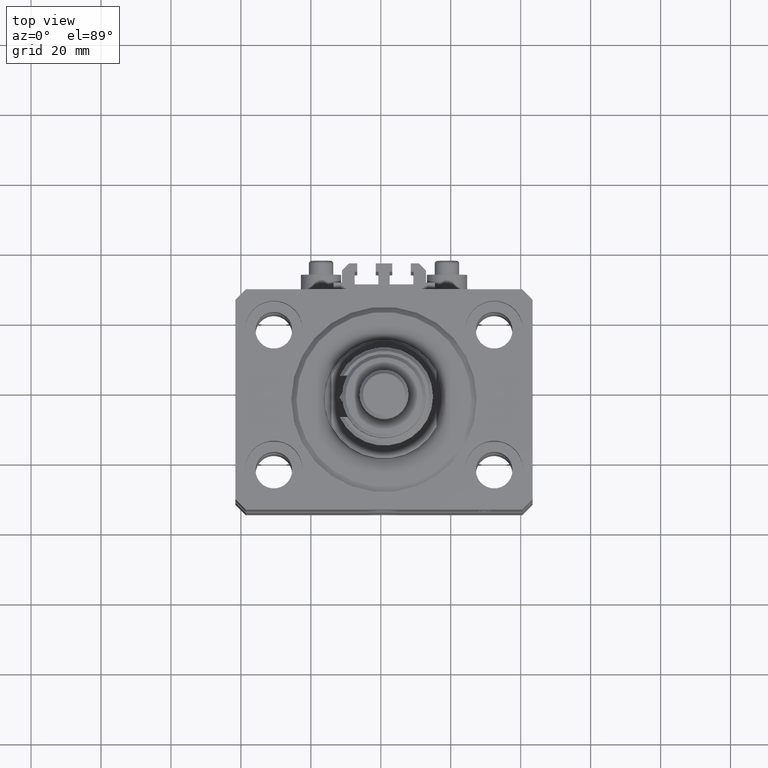
[diagram: clean part render]
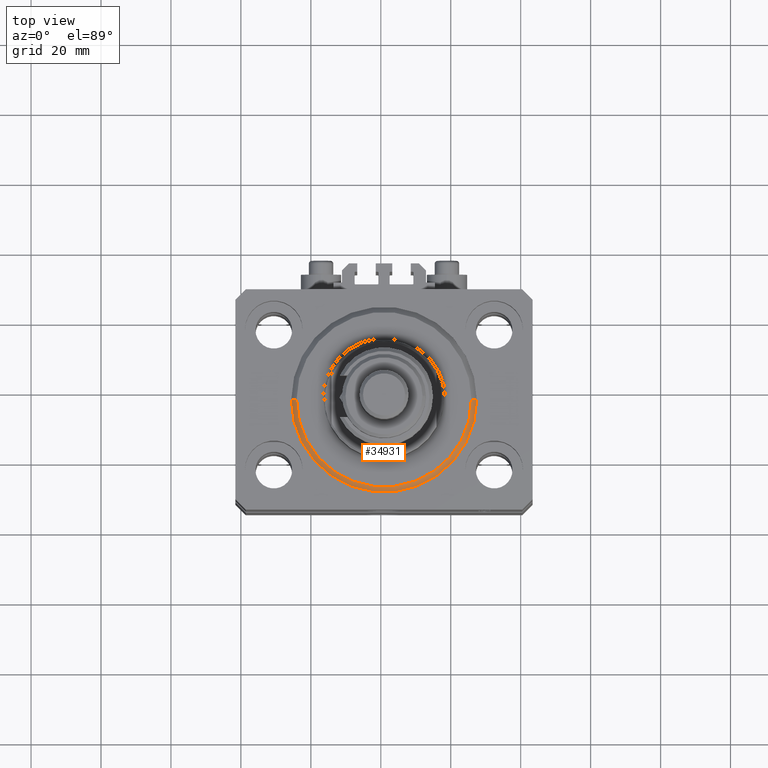
[diagram: same view with one face highlighted and labeled with its STEP entity id]
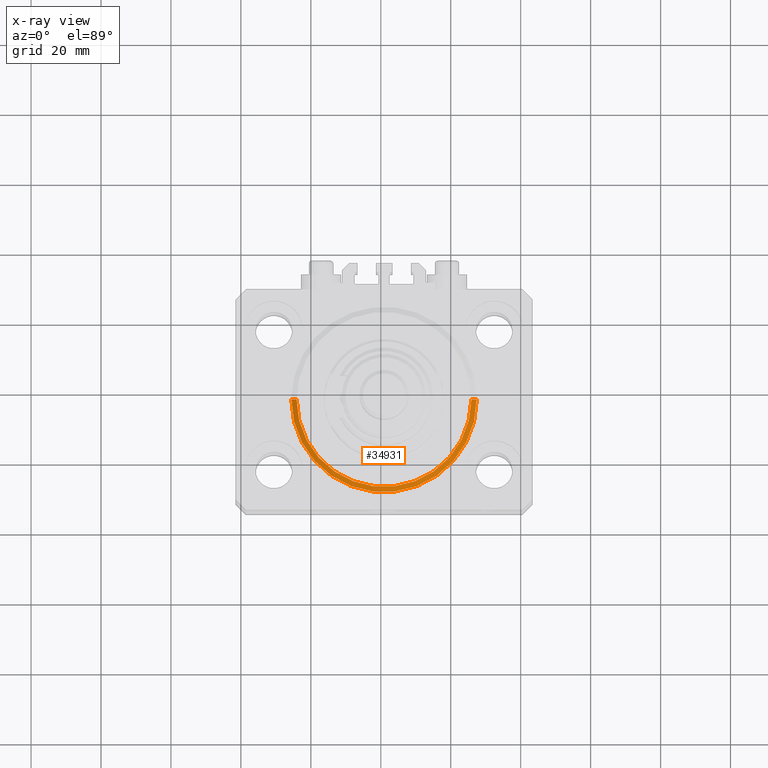
[diagram: x-ray of the same camera — body ghosted, the highlighted face saturated]
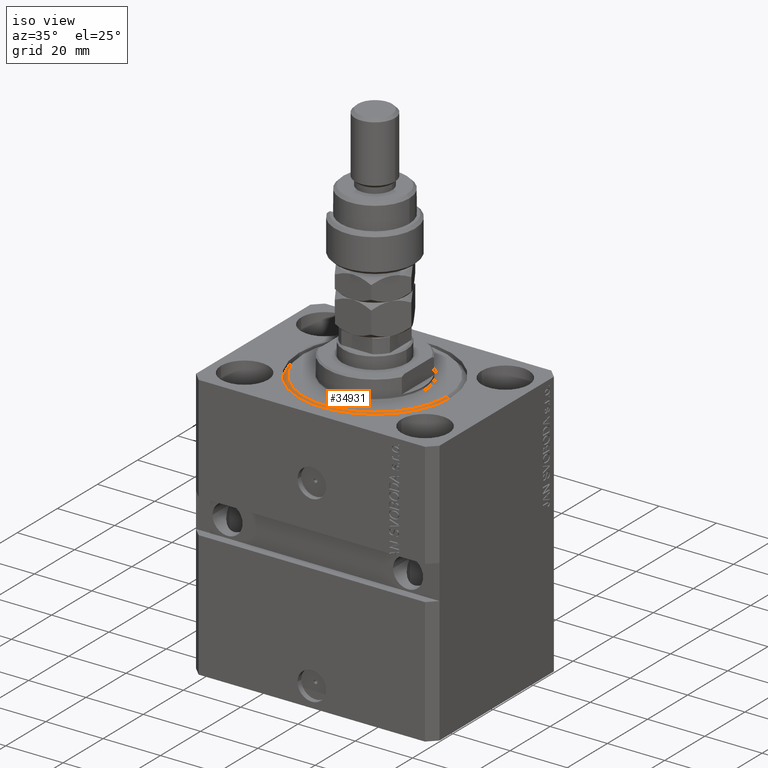
[diagram: same view with one face highlighted and labeled with its STEP entity id]
A machine part, top view. The second image highlights one B-rep face of the part: STEP entity #34931.
The next image is the same camera in x-ray: the body ghosted, the highlighted face saturated — about 0% of this face is hidden behind the body in this view.
A second angle (iso view) of the same face is appended — the face is thin or edge-on in the first view.
In plain terms, the highlighted conical surface has half-angle 45 deg.
Its self-contained STEP definition (entity closure, byte-faithful):
#2808 = ORIENTED_EDGE ( 'NONE', *, *, #39669, .T. ) ;
#4891 = DIRECTION ( 'NONE',  ( 1.000000000000000000, 0.000000000000000000, 0.000000000000000000 ) ) ;
#5828 = CARTESIAN_POINT ( 'NONE',  ( 24.99999999999998224, 0.000000000000000000, 0.000000000000000000 ) ) ;
#8676 = CIRCLE ( 'NONE', #22530, 24.99999999999998224 ) ;
#8707 = FACE_OUTER_BOUND ( 'NONE', #38345, .T. ) ;
#8916 = ORIENTED_EDGE ( 'NONE', *, *, #50377, .F. ) ;
#10936 = CARTESIAN_POINT ( 'NONE',  ( -26.50000000000000355, 3.245314017740486554E-15, 1.500000000000018652 ) ) ;
#12069 = VERTEX_POINT ( 'NONE', #33013 ) ;
#13801 = DIRECTION ( 'NONE',  ( -0.000000000000000000, -0.000000000000000000, -1.000000000000000000 ) ) ;
#14887 = CARTESIAN_POINT ( 'NONE',  ( 26.50000000000000355, 0.000000000000000000, 1.500000000000018652 ) ) ;
#17020 = CARTESIAN_POINT ( 'NONE',  ( -24.99999999999998224, 3.153465507804433615E-15, 0.000000000000000000 ) ) ;
#17392 = EDGE_CURVE ( 'NONE', #25565, #12069, #45331, .T. ) ;
#20766 = DIRECTION ( 'NONE',  ( 1.000000000000000000, 0.000000000000000000, 0.000000000000000000 ) ) ;
#22530 = AXIS2_PLACEMENT_3D ( 'NONE', #36746, #13801, #44650 ) ;
#22793 = LINE ( 'NONE', #14887, #32025 ) ;
#23822 = CIRCLE ( 'NONE', #34408, 26.50000000000000355 ) ;
#24251 = CARTESIAN_POINT ( 'NONE',  ( 0.000000000000000000, 0.000000000000000000, 1.500000000000018652 ) ) ;
#24837 = CARTESIAN_POINT ( 'NONE',  ( 0.000000000000000000, 0.000000000000000000, 1.500000000000018652 ) ) ;
#25565 = VERTEX_POINT ( 'NONE', #17020 ) ;
#26939 = AXIS2_PLACEMENT_3D ( 'NONE', #24251, #39801, #4891 ) ;
#27759 = CONICAL_SURFACE ( 'NONE', #26939, 26.50000000000000355, 0.7853981633974495002 ) ;
#28681 = VECTOR ( 'NONE', #49932, 1000.000000000000000 ) ;
#32025 = VECTOR ( 'NONE', #38584, 1000.000000000000000 ) ;
#33013 = CARTESIAN_POINT ( 'NONE',  ( -26.50000000000000355, 0.000000000000000000, 1.500000000000018652 ) ) ;
#34408 = AXIS2_PLACEMENT_3D ( 'NONE', #24837, #40143, #20766 ) ;
#34931 = ADVANCED_FACE ( 'NONE', ( #8707 ), #27759, .T. ) ;
#36746 = CARTESIAN_POINT ( 'NONE',  ( 0.000000000000000000, 0.000000000000000000, 0.000000000000000000 ) ) ;
#37722 = EDGE_CURVE ( 'NONE', #12069, #50176, #23822, .T. ) ;
#37758 = ORIENTED_EDGE ( 'NONE', *, *, #37722, .F. ) ;
#38345 = EDGE_LOOP ( 'NONE', ( #38981, #8916, #2808, #37758 ) ) ;
#38584 = DIRECTION ( 'NONE',  ( 0.7071067811865483499, 0.000000000000000000, 0.7071067811865466846 ) ) ;
#38981 = ORIENTED_EDGE ( 'NONE', *, *, #17392, .F. ) ;
#39669 = EDGE_CURVE ( 'NONE', #42653, #50176, #22793, .T. ) ;
#39801 = DIRECTION ( 'NONE',  ( -0.000000000000000000, -0.000000000000000000, 1.000000000000000000 ) ) ;
#40143 = DIRECTION ( 'NONE',  ( -0.000000000000000000, -0.000000000000000000, 1.000000000000000000 ) ) ;
#41385 = CARTESIAN_POINT ( 'NONE',  ( 26.50000000000000355, 3.245314017740486554E-15, 1.500000000000018652 ) ) ;
#42653 = VERTEX_POINT ( 'NONE', #5828 ) ;
#44650 = DIRECTION ( 'NONE',  ( 1.000000000000000000, 0.000000000000000000, 0.000000000000000000 ) ) ;
#45331 = LINE ( 'NONE', #10936, #28681 ) ;
#49932 = DIRECTION ( 'NONE',  ( -0.7071067811865483499, 8.659560562354942719E-17, 0.7071067811865466846 ) ) ;
#50176 = VERTEX_POINT ( 'NONE', #41385 ) ;
#50377 = EDGE_CURVE ( 'NONE', #42653, #25565, #8676, .T. ) ;